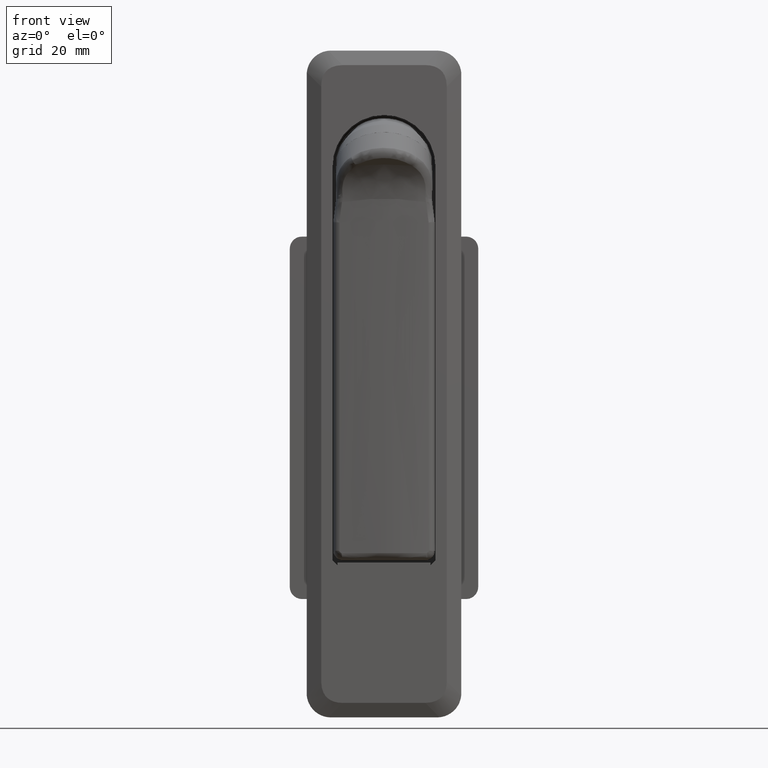
[diagram: clean part render]
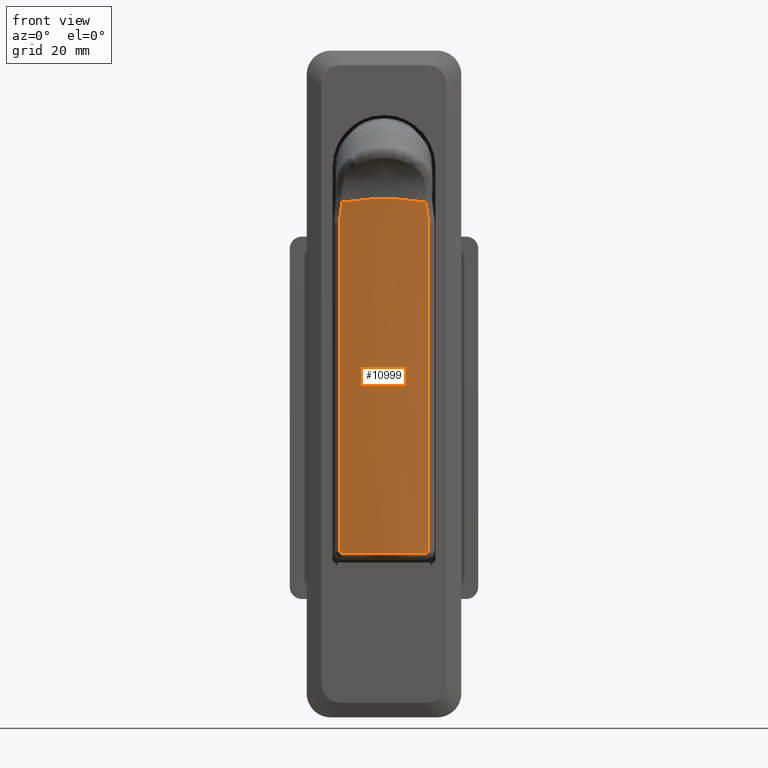
[diagram: same view with one face highlighted and labeled with its STEP entity id]
A machine part, front view. The second image highlights one B-rep face of the part: STEP entity #10999.
In plain terms, the highlighted face is a freeform B-spline surface patch.
Its self-contained STEP definition (entity closure, byte-faithful):
#8016=CARTESIAN_POINT('',(-0.593287196272527,9.230769230769191,-79.499797333296385));
#8017=VERTEX_POINT('',#8016);
#8043=CARTESIAN_POINT('',(-0.670864539819239,8.717948717948669,-79.999797333296385));
#8044=VERTEX_POINT('',#8043);
#8056=CARTESIAN_POINT('',(-0.593287196272520,9.230769230769191,-79.499797333296385));
#8057=CARTESIAN_POINT('',(-0.593287196272520,9.230769230769189,-79.533443926202096));
#8058=CARTESIAN_POINT('',(-0.593824289165084,9.227321544824644,-79.566479465484122));
#8059=CARTESIAN_POINT('',(-0.595395049034603,9.217221747952639,-79.615159379093669));
#8060=CARTESIAN_POINT('',(-0.596047100512712,9.213027370892773,-79.631239318154869));
#8061=CARTESIAN_POINT('',(-0.597612461997759,9.202948178609187,-79.663099646056651));
#8062=CARTESIAN_POINT('',(-0.598528233251857,9.197047397824948,-79.678884863008406));
#8063=CARTESIAN_POINT('',(-0.601600149239426,9.177228991317932,-79.724686185330214));
#8064=CARTESIAN_POINT('',(-0.604094566932641,9.161108413612308,-79.753548243355041));
#8065=CARTESIAN_POINT('',(-0.609943642256976,9.123169066111039,-79.807997393731895));
#8066=CARTESIAN_POINT('',(-0.613314971917447,9.101239427799726,-79.833567112454332));
#8067=CARTESIAN_POINT('',(-0.620605796429309,9.053603195493432,-79.879216782380539));
#8068=CARTESIAN_POINT('',(-0.624556211541727,9.027697151018447,-79.899625018430939));
#8069=CARTESIAN_POINT('',(-0.633058290788265,8.971655845646254,-79.935549394884376));
#8070=CARTESIAN_POINT('',(-0.637508954684916,8.942184459536303,-79.950612235691523));
#8071=CARTESIAN_POINT('',(-0.646677806205394,8.881137571213294,-79.974894555783010));
#8072=CARTESIAN_POINT('',(-0.651447635714418,8.849216784739275,-79.984220410915398));
#8073=CARTESIAN_POINT('',(-0.661120003370704,8.784107985001834,-79.996672866951599));
#8074=CARTESIAN_POINT('',(-0.665980695385446,8.751204357139343,-79.999797333296357));
#8075=CARTESIAN_POINT('',(-0.670864539819236,8.717948717948669,-79.999797333296385));
#8076=B_SPLINE_CURVE_WITH_KNOTS('',3,(#8056,#8057,#8058,#8059,#8060,#8061,#8062,#8063,#8064,#8065,#8066,#8067,#8068,#8069,#8070,#8071,#8072,#8073,#8074,#8075),.UNSPECIFIED.,.F.,.U.,(4,2,2,2,2,2,2,2,2,4),(0.0,0.125000000000043,0.187500000000039,0.250000000000035,0.375000000000029,0.500000000000023,0.625000000000017,0.750000000000012,0.875000000000006,1.0),.UNSPECIFIED.);
#8077=EDGE_CURVE('',#8017,#8044,#8076,.T.);
#8101=CARTESIAN_POINT('',(-0.670864539819239,-8.717948717948669,-79.999797333296385));
#8102=VERTEX_POINT('',#8101);
#8114=CARTESIAN_POINT('',(-0.670864539819239,8.717948717948669,-79.999797333296385));
#8115=CARTESIAN_POINT('',(-1.108012554850585,5.742442924498828,-79.999797333296414));
#8116=CARTESIAN_POINT('',(-1.520450271841517,-0.092103118159534,-79.999797333296300));
#8117=CARTESIAN_POINT('',(-1.081498204934079,-5.922767603829385,-79.999797333296314));
#8118=CARTESIAN_POINT('',(-0.670864539819239,-8.717948717948669,-79.999797333296385));
#8119=B_SPLINE_CURVE_WITH_KNOTS('',3,(#8114,#8115,#8116,#8117,#8118),.UNSPECIFIED.,.F.,.U.,(4,1,4),(2.317304E-009,9.022320941125066,17.497853507731492),.UNSPECIFIED.);
#8120=EDGE_CURVE('',#8044,#8102,#8119,.T.);
#8148=CARTESIAN_POINT('',(-0.593287196272527,9.230769230769191,-11.621982736734919));
#8149=VERTEX_POINT('',#8148);
#8169=CARTESIAN_POINT('',(-0.593287196272527,9.230769230769191,-11.621982736734919));
#8170=CARTESIAN_POINT('',(-0.593287196272527,9.230769230769191,-79.499797333296385));
#8171=QUASI_UNIFORM_CURVE('',1,(#8169,#8170),.UNSPECIFIED.,.F.,.U.);
#8172=EDGE_CURVE('',#8149,#8017,#8171,.T.);
#8277=CARTESIAN_POINT('',(-0.593287196272524,-9.230769230769180,-79.499797333296385));
#8278=VERTEX_POINT('',#8277);
#8289=CARTESIAN_POINT('',(-0.670864539819239,-8.717948717948669,-79.999797333296385));
#8290=CARTESIAN_POINT('',(-0.665980144494525,-8.751208108329632,-79.999797333296414));
#8291=CARTESIAN_POINT('',(-0.661143082661120,-8.783950872228644,-79.996672440863293));
#8292=CARTESIAN_POINT('',(-0.651563149818038,-8.848440941503393,-79.984398832801773));
#8293=CARTESIAN_POINT('',(-0.646775480897858,-8.880485732467736,-79.975122260247645));
#8294=CARTESIAN_POINT('',(-0.637539241158125,-8.941984302598456,-79.950722990857386));
#8295=CARTESIAN_POINT('',(-0.633119812092454,-8.971248250747573,-79.935751181536816));
#8296=CARTESIAN_POINT('',(-0.624692084304021,-9.026803578297207,-79.900255946330816));
#8297=CARTESIAN_POINT('',(-0.620653968313786,-9.053287741934458,-79.879486027101748));
#8298=CARTESIAN_POINT('',(-0.613347313188240,-9.101028822854357,-79.833801625797349));
#8299=CARTESIAN_POINT('',(-0.610040742130485,-9.122538080131307,-79.808792533000045));
#8300=CARTESIAN_POINT('',(-0.605632074616259,-9.151136104060617,-79.767913051666923));
#8301=CARTESIAN_POINT('',(-0.604250199207733,-9.160084586490267,-79.753651234919403));
#8302=CARTESIAN_POINT('',(-0.601737734801617,-9.176333950626267,-79.724589253275965));
#8303=CARTESIAN_POINT('',(-0.600599785083706,-9.183682690760108,-79.709733557983370));
#8304=CARTESIAN_POINT('',(-0.597538712134586,-9.203431530072750,-79.664204935959518));
#8305=CARTESIAN_POINT('',(-0.595962080415191,-9.213575696093361,-79.632497429178656));
#8306=CARTESIAN_POINT('',(-0.593824544872079,-9.227320006807236,-79.566717616400510));
#8307=CARTESIAN_POINT('',(-0.593287196272525,-9.230769230769182,-79.533448534454294));
#8308=CARTESIAN_POINT('',(-0.593287196272525,-9.230769230769180,-79.499797333296385));
#8309=B_SPLINE_CURVE_WITH_KNOTS('',3,(#8289,#8290,#8291,#8292,#8293,#8294,#8295,#8296,#8297,#8298,#8299,#8300,#8301,#8302,#8303,#8304,#8305,#8306,#8307,#8308),.UNSPECIFIED.,.F.,.U.,(4,2,2,2,2,2,2,2,2,4),(0.0,0.124999999999986,0.249999999999971,0.374999999999956,0.499999999999942,0.624999999999928,0.687499999999940,0.749999999999952,0.874999999999976,1.0),.UNSPECIFIED.);
#8310=EDGE_CURVE('',#8102,#8278,#8309,.T.);
#8347=CARTESIAN_POINT('',(-0.593880876059456,9.226955446356101,-11.561117204549660));
#8348=VERTEX_POINT('',#8347);
#8370=CARTESIAN_POINT('',(-0.593880876059456,9.226955446356101,-11.561117204549660));
#8371=CARTESIAN_POINT('',(-0.593287426954586,9.230768286728790,-11.591427652377190));
#8372=CARTESIAN_POINT('',(-0.593287196272527,9.230769230769191,-11.621982736734919));
#8373=B_SPLINE_CURVE_WITH_KNOTS('',2,(#8370,#8371,#8372),.UNSPECIFIED.,.F.,.U.,(3,3),(1.276756E-015,0.061048978907316),.UNSPECIFIED.);
#8374=EDGE_CURVE('',#8348,#8149,#8373,.T.);
#8395=CARTESIAN_POINT('',(-0.593287196272527,-9.230769230769170,-11.621982736734340));
#8396=VERTEX_POINT('',#8395);
#8408=CARTESIAN_POINT('',(-0.593287196272524,-9.230769230769180,-79.499797333296385));
#8409=CARTESIAN_POINT('',(-0.593287196272527,-9.230769230769170,-11.621982736734340));
#8410=QUASI_UNIFORM_CURVE('',1,(#8408,#8409),.UNSPECIFIED.,.F.,.U.);
#8411=EDGE_CURVE('',#8278,#8396,#8410,.T.);
#8442=CARTESIAN_POINT('',(-0.673580437330200,8.699435233337031,-7.367387496955450));
#8443=VERTEX_POINT('',#8442);
#8470=CARTESIAN_POINT('',(-0.673580437330200,8.699435233337031,-7.367387496955450));
#8471=CARTESIAN_POINT('',(-0.634903316888660,8.963372509366565,-9.465660829633563));
#8472=CARTESIAN_POINT('',(-0.593880876059456,9.226955446356101,-11.561117204549660));
#8480=(BOUNDED_CURVE()B_SPLINE_CURVE(2,(#8470,#8471,#8472),.UNSPECIFIED.,.F.,.U.)CURVE()GEOMETRIC_REPRESENTATION_ITEM()QUASI_UNIFORM_CURVE()RATIONAL_B_SPLINE_CURVE((1.0,0.999990116983471,1.0))REPRESENTATION_ITEM(''));
#8481=EDGE_CURVE('',#8443,#8348,#8480,.T.);
#8508=CARTESIAN_POINT('',(-0.593880876059459,-9.226955446356081,-11.561117204549101));
#8509=VERTEX_POINT('',#8508);
#8520=CARTESIAN_POINT('',(-0.593287196272527,-9.230769230769170,-11.621982736734340));
#8521=CARTESIAN_POINT('',(-0.593287328174034,-9.230768652364905,-11.591427628502650));
#8522=CARTESIAN_POINT('',(-0.593880876059459,-9.226955446356081,-11.561117204549101));
#8523=B_SPLINE_CURVE_WITH_KNOTS('',2,(#8520,#8521,#8522),.UNSPECIFIED.,.F.,.U.,(3,3),(8.014422E-016,0.061049002771564),.UNSPECIFIED.);
#8524=EDGE_CURVE('',#8396,#8509,#8523,.T.);
#8616=CARTESIAN_POINT('',(-0.673580437330186,-8.699435233337180,-7.367387496955471));
#8617=VERTEX_POINT('',#8616);
#8629=CARTESIAN_POINT('',(-0.593880876059431,-9.226955446356083,-11.561117204549079));
#8630=CARTESIAN_POINT('',(-0.634903316888584,-8.963372509367099,-9.465660829636901));
#8631=CARTESIAN_POINT('',(-0.673580437330186,-8.699435233337180,-7.367387496955471));
#8639=(BOUNDED_CURVE()B_SPLINE_CURVE(2,(#8629,#8630,#8631),.UNSPECIFIED.,.F.,.U.)CURVE()GEOMETRIC_REPRESENTATION_ITEM()QUASI_UNIFORM_CURVE()RATIONAL_B_SPLINE_CURVE((1.0,0.999990116966999,1.0))REPRESENTATION_ITEM(''));
#8640=EDGE_CURVE('',#8509,#8617,#8639,.T.);
#9186=CARTESIAN_POINT('',(-0.673580437330193,-8.699435233337191,-7.367387496955452));
#9187=CARTESIAN_POINT('',(-1.948387502684834,-6.245005E-014,-5.880112587375044));
#9188=CARTESIAN_POINT('',(-0.673580437330200,8.699435233337031,-7.367387496955450));
#9196=(BOUNDED_CURVE()B_SPLINE_CURVE(2,(#9186,#9187,#9188),.UNSPECIFIED.,.F.,.U.)CURVE()GEOMETRIC_REPRESENTATION_ITEM()QUASI_UNIFORM_CURVE()RATIONAL_B_SPLINE_CURVE((1.0,0.989433034427772,1.0))REPRESENTATION_ITEM(''));
#9197=EDGE_CURVE('',#8617,#8443,#9196,.T.);
#10973=CARTESIAN_POINT('',(-0.444814401992882,10.138524556474284,-4.793397471239135));
#10974=CARTESIAN_POINT('',(-0.444814401992882,10.138524556474284,-81.879957329847798));
#10975=CARTESIAN_POINT('',(-2.183276657161329,-0.001788994260023,-4.793397471239135));
#10976=CARTESIAN_POINT('',(-2.183276657161329,-0.001788994260023,-81.879957329847812));
#10977=CARTESIAN_POINT('',(-0.444218404647681,-10.142000348774060,-4.793397471239135));
#10978=CARTESIAN_POINT('',(-0.444218404647681,-10.142000348774060,-81.879957329847812));
#10986=(BOUNDED_SURFACE()B_SPLINE_SURFACE(1,2,((#10973,#10975,#10977),(#10974,#10976,#10978)),.UNSPECIFIED.,.F.,.F.,.U.)B_SPLINE_SURFACE_WITH_KNOTS((2,2),(3,3),(0.0,77.086559858608680),(0.0,20.427425612610890),.UNSPECIFIED.)GEOMETRIC_REPRESENTATION_ITEM()RATIONAL_B_SPLINE_SURFACE(((0.998375636264553,0.982045415023698,0.994384386478732),(0.998375636264553,0.982045415023698,0.994384386478732)))REPRESENTATION_ITEM('')SURFACE());
#10987=ORIENTED_EDGE('',*,*,#8524,.T.);
#10988=ORIENTED_EDGE('',*,*,#8640,.T.);
#10989=ORIENTED_EDGE('',*,*,#9197,.T.);
#10990=ORIENTED_EDGE('',*,*,#8481,.T.);
#10991=ORIENTED_EDGE('',*,*,#8374,.T.);
#10992=ORIENTED_EDGE('',*,*,#8172,.T.);
#10993=ORIENTED_EDGE('',*,*,#8077,.T.);
#10994=ORIENTED_EDGE('',*,*,#8120,.T.);
#10995=ORIENTED_EDGE('',*,*,#8310,.T.);
#10996=ORIENTED_EDGE('',*,*,#8411,.T.);
#10997=EDGE_LOOP('',(#10987,#10988,#10989,#10990,#10991,#10992,#10993,#10994,#10995,#10996));
#10998=FACE_OUTER_BOUND('',#10997,.T.);
#10999=ADVANCED_FACE('',(#10998),#10986,.T.);